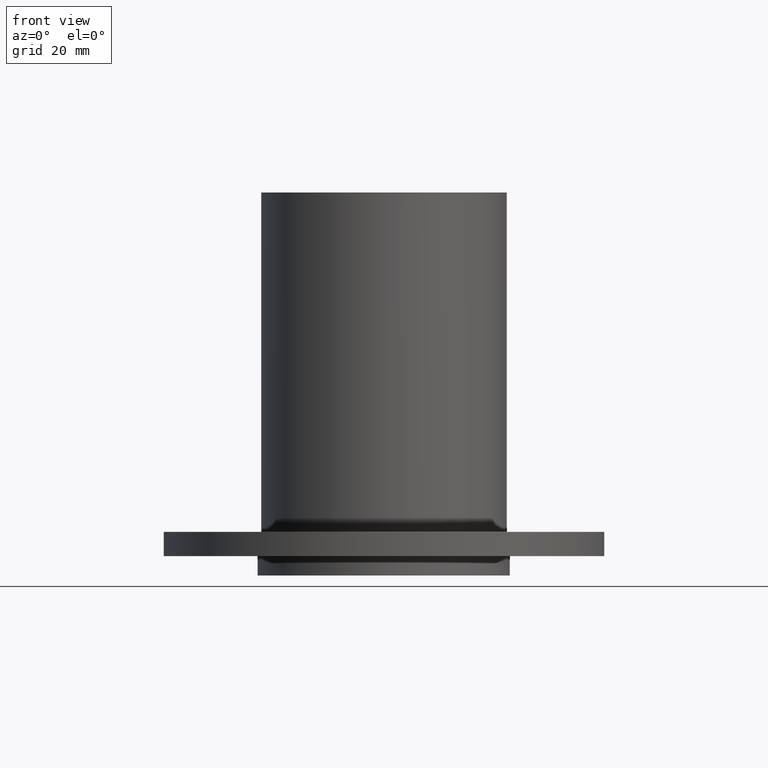
[diagram: clean part render]
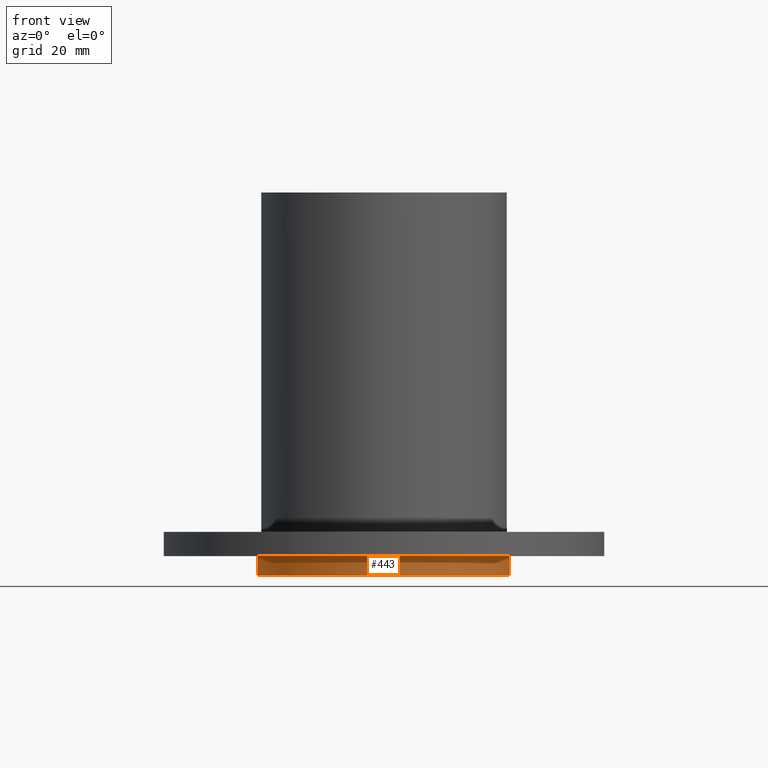
[diagram: same view with one face highlighted and labeled with its STEP entity id]
A machine part, front view. The second image highlights one B-rep face of the part: STEP entity #443.
In plain terms, the highlighted cylindrical surface (bore or boss wall) has radius 26 mm, axis along (0, 0, 1).
Its self-contained STEP definition (entity closure, byte-faithful):
#416=CARTESIAN_POINT('',(0.0,0.0,-7.000000000000003));
#417=DIRECTION('',(0.0,0.0,1.0));
#418=DIRECTION('',(1.0,0.0,0.0));
#419=AXIS2_PLACEMENT_3D('',#416,#417,#418);
#420=CYLINDRICAL_SURFACE('',#419,26.0);
#421=CARTESIAN_POINT('',(26.0,0.0,-5.000000000000004));
#422=VERTEX_POINT('',#421);
#423=CARTESIAN_POINT('',(0.0,0.0,-5.000000000000004));
#424=DIRECTION('',(0.0,0.0,1.0));
#425=DIRECTION('',(1.0,0.0,0.0));
#426=AXIS2_PLACEMENT_3D('',#423,#424,#425);
#427=CIRCLE('',#426,26.0);
#428=EDGE_CURVE('',#422,#422,#427,.T.);
#429=ORIENTED_EDGE('',*,*,#428,.F.);
#430=EDGE_LOOP('',(#429));
#431=FACE_OUTER_BOUND('',#430,.T.);
#432=CARTESIAN_POINT('',(26.0,0.0,-9.000000000000002));
#433=VERTEX_POINT('',#432);
#434=CARTESIAN_POINT('',(0.0,0.0,-9.000000000000002));
#435=DIRECTION('',(0.0,0.0,1.0));
#436=DIRECTION('',(1.0,0.0,0.0));
#437=AXIS2_PLACEMENT_3D('',#434,#435,#436);
#438=CIRCLE('',#437,26.0);
#439=EDGE_CURVE('',#433,#433,#438,.T.);
#440=ORIENTED_EDGE('',*,*,#439,.T.);
#441=EDGE_LOOP('',(#440));
#442=FACE_BOUND('',#441,.T.);
#443=ADVANCED_FACE('',(#431,#442),#420,.T.);